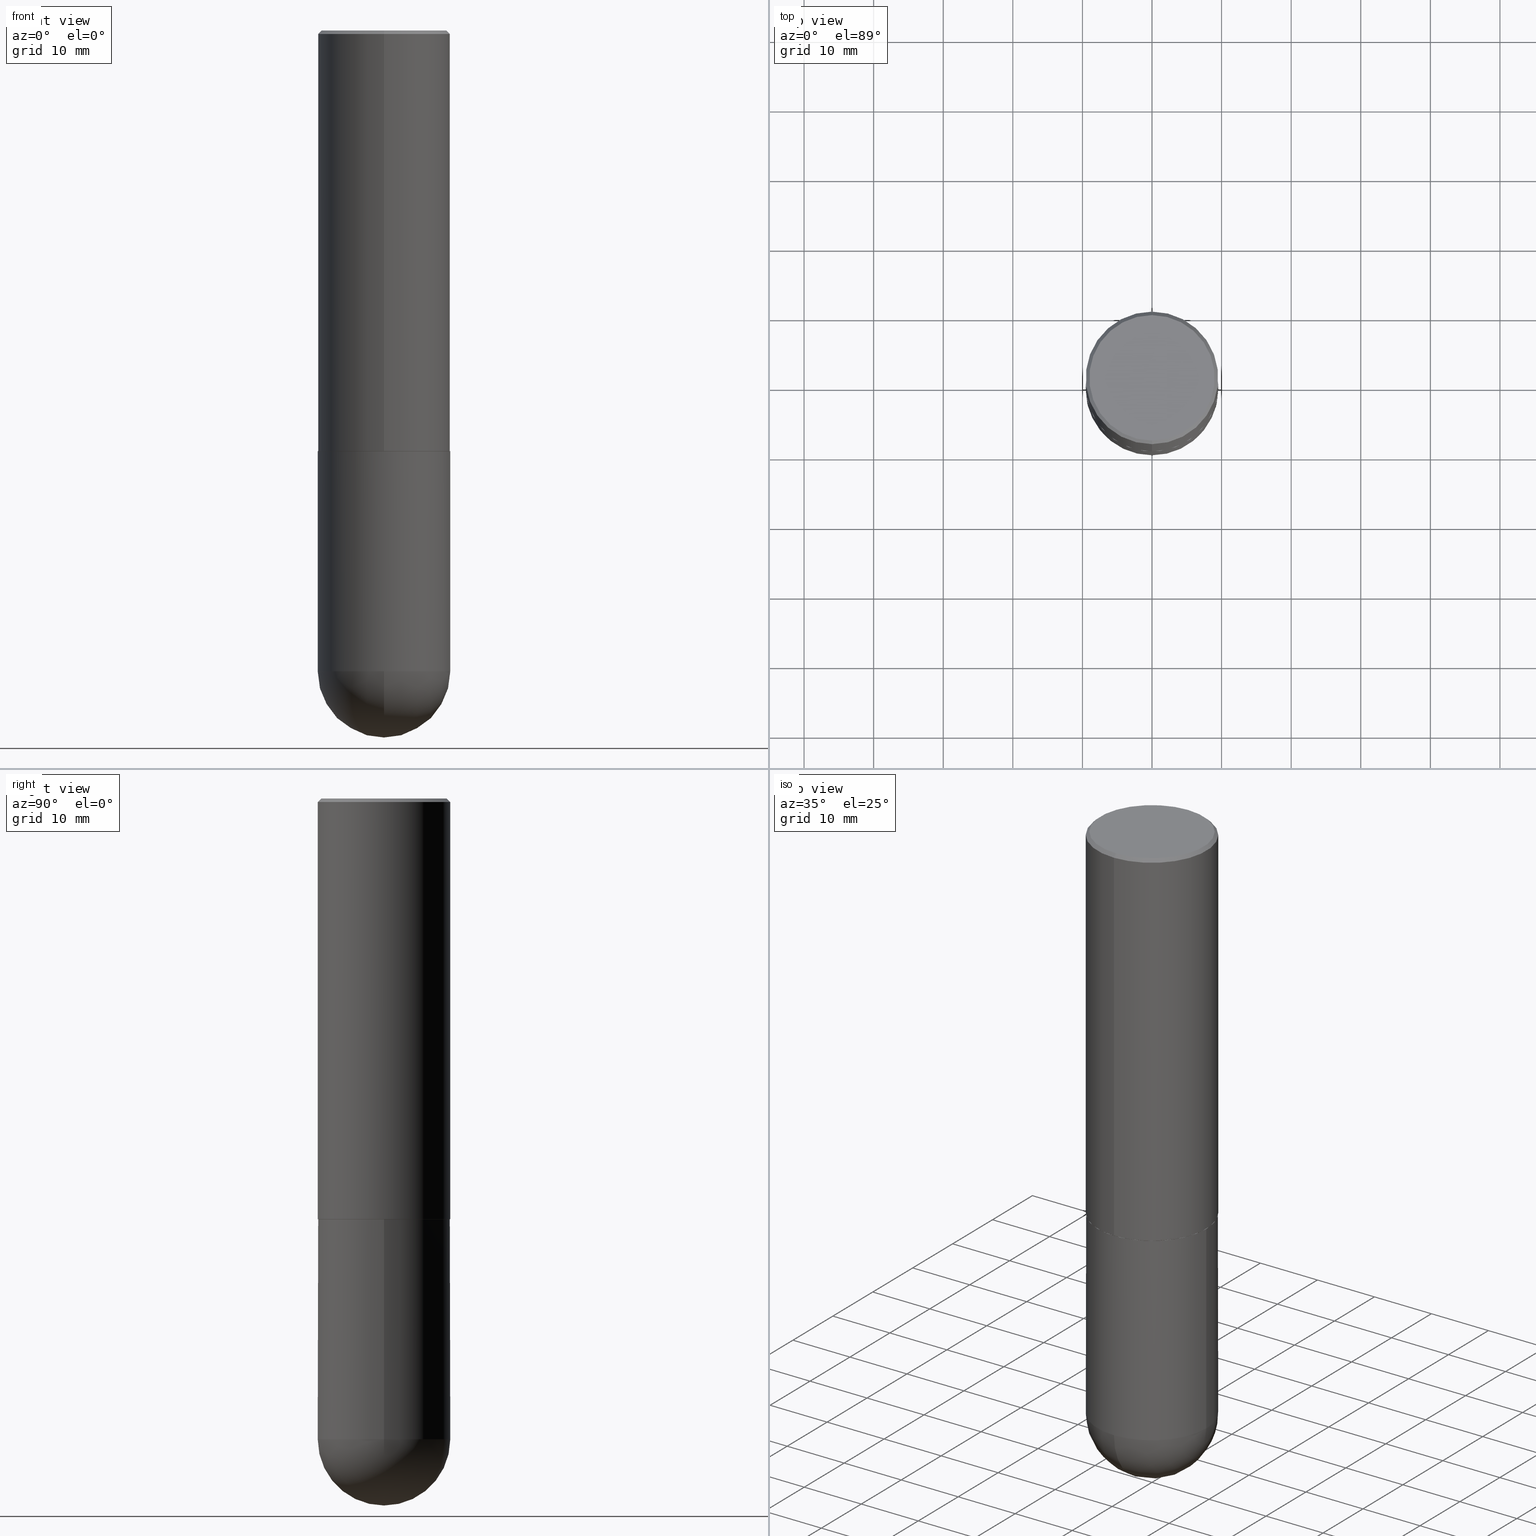
[diagram: canonical four-view strip — front | top / right | iso, engineering-drawing reading convention]
A machine part, canonical four-view strip (front | top / right | iso — engineering-drawing reading convention). The complete STEP part file that produces these views, byte-faithful:
ISO-10303-21;
HEADER;
FILE_DESCRIPTION (( 'STEP AP203' ),
    '1' );
FILE_NAME ('34676.STEP',
    '2024-02-21T18:20:04',
    ( '' ),
    ( '' ),
    'SwSTEP 2.0',
    'SolidWorks 2023',
    '' );
FILE_SCHEMA (( 'CONFIG_CONTROL_DESIGN' ));
ENDSEC;

DATA;
#1 = EDGE_CURVE ( 'NONE', #393, #296, #245, .T. ) ;
#2 = CARTESIAN_POINT ( 'NONE',  ( 5.818430166394473968E-29, -8.312282656287337145E-15, -2.379999999999999893 ) ) ;
#3 = AXIS2_PLACEMENT_3D ( 'NONE', #67, #230, #7 ) ;
#4 =( GEOMETRIC_REPRESENTATION_CONTEXT ( 3 ) GLOBAL_UNCERTAINTY_ASSIGNED_CONTEXT ( ( #401 ) ) GLOBAL_UNIT_ASSIGNED_CONTEXT ( ( #83, #87, #316 ) ) REPRESENTATION_CONTEXT ( 'NONE', 'WORKASPACE' ) );
#5 = LOCAL_TIME ( 13, 20, 4.000000000000000000, #60 ) ;
#6 = ORIENTED_EDGE ( 'NONE', *, *, #253, .T. ) ;
#7 = DIRECTION ( 'NONE',  ( 1.000000000000000000, -6.982962677686265922E-15, 0.000000000000000000 ) ) ;
#8 = ORIENTED_EDGE ( 'NONE', *, *, #261, .T. ) ;
#9 = DIRECTION ( 'NONE',  ( -2.444718557308602310E-29, 3.492555737935856374E-15, 1.000000000000000000 ) ) ;
#10 = VERTEX_POINT ( 'NONE', #46 ) ;
#11 = DIRECTION ( 'NONE',  ( -6.982962677686265922E-15, -1.000000000000000000, 3.494488891895536035E-15 ) ) ;
#12 = AXIS2_PLACEMENT_3D ( 'NONE', #325, #165, #232 ) ;
#13 = ADVANCED_FACE ( 'NONE', ( #334 ), #302, .T. ) ;
#14 = FACE_OUTER_BOUND ( 'NONE', #182, .T. ) ;
#15 = ORIENTED_EDGE ( 'NONE', *, *, #109, .F. ) ;
#16 = DIRECTION ( 'NONE',  ( -6.982962677686265922E-15, -1.000000000000000000, 3.492555737935855585E-15 ) ) ;
#17 = DIRECTION ( 'NONE',  ( 5.024295867788576727E-15, 0.7071067811866224018, 0.7071067811864726327 ) ) ;
#18 = CARTESIAN_POINT ( 'NONE',  ( -2.572686749164323547E-15, -0.3750000000000001110, -0.01999999999999877570 ) ) ;
#19 = PRODUCT_RELATED_PRODUCT_CATEGORY ( 'detail', '', ( #146 ) ) ;
#20 = CARTESIAN_POINT ( 'NONE',  ( -2.664535259100290106E-15, -0.3750000000000131006, -3.624999999999998668 ) ) ;
#21 = CARTESIAN_POINT ( 'NONE',  ( 2.618611004132408392E-15, 0.3749999999999916733, -2.380000000000001226 ) ) ;
#22 = EDGE_LOOP ( 'NONE', ( #399, #141, #248, #104 ) ) ;
#23 = DIRECTION ( 'NONE',  ( -7.105427357600999492E-15, -1.000000000000000000, 0.000000000000000000 ) ) ;
#24 = CARTESIAN_POINT ( 'NONE',  ( 9.466789814748773816E-29, -1.441714559602862136E-14, -4.000000000000000000 ) ) ;
#25 = DIRECTION ( 'NONE',  ( 6.982962677686265922E-15, 1.000000000000000000, -3.494488891895536035E-15 ) ) ;
#26 = DESIGN_CONTEXT ( 'detailed design', #65, 'design' ) ;
#27 = CIRCLE ( 'NONE', #123, 0.3750000000000000555 ) ;
#28 = DIRECTION ( 'NONE',  ( 0.000000000000000000, 0.000000000000000000, 1.000000000000000000 ) ) ;
#29 = CALENDAR_DATE ( 2024, 21, 2 ) ;
#30 = EDGE_CURVE ( 'NONE', #10, #336, #178, .T. ) ;
#31 = PERSON_AND_ORGANIZATION_ROLE ( 'design_owner' ) ;
#32 = CIRCLE ( 'NONE', #144, 0.3750000000000002776 ) ;
#33 = ADVANCED_BREP_SHAPE_REPRESENTATION ( '34676', ( #188, #320, #283 ), #4 ) ;
#34 = VERTEX_POINT ( 'NONE', #24 ) ;
#35 = CARTESIAN_POINT ( 'NONE',  ( 8.864824422421120163E-29, -1.265661985330640259E-14, -3.624999999999999556 ) ) ;
#36 = AXIS2_PLACEMENT_3D ( 'NONE', #294, #45, #71 ) ;
#37 = VECTOR ( 'NONE', #385, 39.37007874015748143 ) ;
#38 = ORIENTED_EDGE ( 'NONE', *, *, #364, .F. ) ;
#39 = DIRECTION ( 'NONE',  ( -6.982962677686266711E-15, -1.000000000000000000, 3.652203200085913145E-15 ) ) ;
#40 = DIRECTION ( 'NONE',  ( -2.444718557308602870E-29, 3.492555737935855980E-15, 1.000000000000000000 ) ) ;
#41 = CC_DESIGN_PERSON_AND_ORGANIZATION_ASSIGNMENT ( #409, #124, ( #155 ) ) ;
#42 = VERTEX_POINT ( 'NONE', #20 ) ;
#43 = SPHERICAL_SURFACE ( 'NONE', #258, 0.3750000000000003886 ) ;
#44 = AXIS2_PLACEMENT_3D ( 'NONE', #277, #400, #23 ) ;
#45 = DIRECTION ( 'NONE',  ( -2.444718557308602870E-29, 3.492555737935855980E-15, 1.000000000000000000 ) ) ;
#46 = CARTESIAN_POINT ( 'NONE',  ( 0.3750000000000001110, -1.310178372400889468E-14, -3.624999999999999556 ) ) ;
#47 = EDGE_CURVE ( 'NONE', #370, #310, #329, .T. ) ;
#48 = DIRECTION ( 'NONE',  ( -2.444718557308602870E-29, 3.492555737935855980E-15, 1.000000000000000000 ) ) ;
#49 = ORIENTED_EDGE ( 'NONE', *, *, #201, .F. ) ;
#50 = DIRECTION ( 'NONE',  ( -4.937700262165053702E-15, -0.7071067811866175168, 0.7071067811864775177 ) ) ;
#51 = CC_DESIGN_APPROVAL ( #344, ( #155 ) ) ;
#52 = DIRECTION ( 'NONE',  ( 2.438088387897960049E-29, -3.491481338843145188E-15, -1.000000000000000000 ) ) ;
#53 = DIMENSIONAL_EXPONENTS ( 1.000000000000000000, 0.000000000000000000, 0.000000000000000000, 0.000000000000000000, 0.000000000000000000, 0.000000000000000000, 0.000000000000000000 ) ;
#54 = CARTESIAN_POINT ( 'NONE',  ( 8.533704644507233916E-29, -1.313080222144645289E-14, -3.624999999999999556 ) ) ;
#55 = EDGE_LOOP ( 'NONE', ( #66, #72, #227, #402 ) ) ;
#56 = DIRECTION ( 'NONE',  ( -2.444718557308602870E-29, 3.492555737935855980E-15, 1.000000000000000000 ) ) ;
#57 = CARTESIAN_POINT ( 'NONE',  ( 0.000000000000000000, 0.000000000000000000, 0.000000000000000000 ) ) ;
#58 = LOCAL_TIME ( 13, 20, 4.000000000000000000, #256 ) ;
#59 = EDGE_CURVE ( 'NONE', #393, #113, #63, .T. ) ;
#60 = COORDINATED_UNIVERSAL_TIME_OFFSET ( 5, 0, .BEHIND. ) ;
#61 = PERSON_AND_ORGANIZATION ( #315, #116 ) ;
#62 = PERSON_AND_ORGANIZATION_ROLE ( 'classification_officer' ) ;
#63 = CIRCLE ( 'NONE', #295, 0.3739999999999999991 ) ;
#64 = CARTESIAN_POINT ( 'NONE',  ( 2.618611004132438763E-15, 0.3749999999999873990, -3.625000000000000888 ) ) ;
#65 = APPLICATION_CONTEXT ( 'configuration controlled 3d designs of mechanical parts and assemblies' ) ;
#66 = ORIENTED_EDGE ( 'NONE', *, *, #261, .F. ) ;
#67 = CARTESIAN_POINT ( 'NONE',  ( 8.864824422421120163E-29, -1.265661985330640259E-14, -3.624999999999999556 ) ) ;
#68 = AXIS2_PLACEMENT_3D ( 'NONE', #152, #362, #303 ) ;
#69 = PLANE ( 'NONE',  #239 ) ;
#70 = ORIENTED_EDGE ( 'NONE', *, *, #307, .F. ) ;
#71 = DIRECTION ( 'NONE',  ( -6.982962677686266711E-15, -1.000000000000000000, 3.652203200085913145E-15 ) ) ;
#72 = ORIENTED_EDGE ( 'NONE', *, *, #226, .T. ) ;
#73 = DIRECTION ( 'NONE',  ( 2.444718557308602870E-29, -3.492555737935855980E-15, -1.000000000000000000 ) ) ;
#74 = AXIS2_PLACEMENT_3D ( 'NONE', #35, #289, #198 ) ;
#75 = EDGE_CURVE ( 'NONE', #107, #42, #403, .T. ) ;
#76 = CC_DESIGN_APPROVAL ( #269, ( #376 ) ) ;
#77 = ORIENTED_EDGE ( 'NONE', *, *, #30, .T. ) ;
#78 = LINE ( 'NONE', #309, #265 ) ;
#79 = FACE_OUTER_BOUND ( 'NONE', #340, .T. ) ;
#80 = CLOSED_SHELL ( 'NONE', ( #100, #13, #193, #408, #217 ) ) ;
#81 = VECTOR ( 'NONE', #279, 39.37007874015748143 ) ;
#82 = VERTEX_POINT ( 'NONE', #342 ) ;
#83 =( CONVERSION_BASED_UNIT ( 'INCH', #211 ) LENGTH_UNIT ( ) NAMED_UNIT ( #53 ) );
#84 = DIRECTION ( 'NONE',  ( -2.445468806185136597E-29, 3.491481338843145583E-15, 1.000000000000000000 ) ) ;
#85 = CARTESIAN_POINT ( 'NONE',  ( 5.820215758720624069E-29, -8.309725586446685153E-15, -2.379999999999999893 ) ) ;
#86 = CARTESIAN_POINT ( 'NONE',  ( 0.000000000000000000, 0.000000000000000000, 0.000000000000000000 ) ) ;
#87 =( NAMED_UNIT ( * ) PLANE_ANGLE_UNIT ( ) SI_UNIT ( $, .RADIAN. ) );
#88 = CC_DESIGN_DATE_AND_TIME_ASSIGNMENT ( #351, #221, ( #186 ) ) ;
#89 = VECTOR ( 'NONE', #137, 39.37007874015748143 ) ;
#90 = CALENDAR_DATE ( 2024, 21, 2 ) ;
#91 = AXIS2_PLACEMENT_3D ( 'NONE', #297, #260, #196 ) ;
#92 = DATE_TIME_ROLE ( 'creation_date' ) ;
#93 = APPLICATION_PROTOCOL_DEFINITION ( 'international standard', 'config_control_design', 1994, #168 ) ;
#94 = SECURITY_CLASSIFICATION_LEVEL ( 'unclassified' ) ;
#95 = CC_DESIGN_PERSON_AND_ORGANIZATION_ASSIGNMENT ( #281, #31, ( #146 ) ) ;
#96 = LOCAL_TIME ( 13, 20, 4.000000000000000000, #374 ) ;
#97 = EDGE_LOOP ( 'NONE', ( #117, #112, #270, #15 ) ) ;
#98 = DIRECTION ( 'NONE',  ( 6.982962677686265922E-15, 1.000000000000000000, -3.494488891895536035E-15 ) ) ;
#99 = DIRECTION ( 'NONE',  ( 1.000000000000000000, -6.982962677686266711E-15, 0.000000000000000000 ) ) ;
#100 = ADVANCED_FACE ( 'NONE', ( #79 ), #210, .T. ) ;
#101 = ORIENTED_EDGE ( 'NONE', *, *, #364, .T. ) ;
#102 = LINE ( 'NONE', #262, #37 ) ;
#103 = AXIS2_PLACEMENT_3D ( 'NONE', #206, #48, #343 ) ;
#104 = ORIENTED_EDGE ( 'NONE', *, *, #339, .F. ) ;
#105 = CARTESIAN_POINT ( 'NONE',  ( 8.533704644507233916E-29, -1.313080222144645289E-14, -3.624999999999999556 ) ) ;
#106 = ORIENTED_EDGE ( 'NONE', *, *, #148, .T. ) ;
#107 = VERTEX_POINT ( 'NONE', #119 ) ;
#108 = CARTESIAN_POINT ( 'NONE',  ( -2.618611004132351200E-15, -0.3750000000000001665, 1.309708401725946436E-15 ) ) ;
#109 = EDGE_CURVE ( 'NONE', #296, #264, #203, .T. ) ;
#110 = CONICAL_SURFACE ( 'NONE', #36, 0.3739999999999999991, 0.7853981633975507526 ) ;
#111 = DIRECTION ( 'NONE',  ( -2.444718557308602870E-29, 3.492555737935855980E-15, 1.000000000000000000 ) ) ;
#112 = ORIENTED_EDGE ( 'NONE', *, *, #59, .T. ) ;
#113 = VERTEX_POINT ( 'NONE', #345 ) ;
#114 = EDGE_CURVE ( 'NONE', #10, #167, #257, .T. ) ;
#115 = DIRECTION ( 'NONE',  ( -6.982962677686266711E-15, -1.000000000000000000, 3.642463991552348591E-15 ) ) ;
#116 = ORGANIZATION ( 'UNSPECIFIED', 'UNSPECIFIED', '' ) ;
#117 = ORIENTED_EDGE ( 'NONE', *, *, #1, .F. ) ;
#118 = CARTESIAN_POINT ( 'NONE',  ( 0.3750000000000000555, -1.092833659057903675E-14, -2.379999999999999893 ) ) ;
#119 = CARTESIAN_POINT ( 'NONE',  ( -0.3750000000000001110, -7.818637460776168963E-15, -3.624999999999999556 ) ) ;
#120 = DATE_AND_TIME ( #254, #58 ) ;
#121 = EDGE_CURVE ( 'NONE', #167, #107, #183, .T. ) ;
#122 = PERSON_AND_ORGANIZATION ( #315, #116 ) ;
#123 = AXIS2_PLACEMENT_3D ( 'NONE', #163, #130, #11 ) ;
#124 = PERSON_AND_ORGANIZATION_ROLE ( 'creator' ) ;
#125 = DATE_AND_TIME ( #412, #5 ) ;
#126 = PERSON_AND_ORGANIZATION ( #315, #116 ) ;
#127 = AXIS2_PLACEMENT_3D ( 'NONE', #21, #52, #299 ) ;
#128 = CARTESIAN_POINT ( 'NONE',  ( 5.820215758720624069E-29, -8.309725586446685153E-15, -2.379999999999999893 ) ) ;
#129 = ORIENTED_EDGE ( 'NONE', *, *, #121, .T. ) ;
#130 = DIRECTION ( 'NONE',  ( -2.444718557308602870E-29, 3.492555737935855980E-15, 1.000000000000000000 ) ) ;
#131 = ADVANCED_FACE ( 'NONE', ( #266 ), #110, .T. ) ;
#132 = PLANE ( 'NONE',  #350 ) ;
#133 = ORIENTED_EDGE ( 'NONE', *, *, #349, .F. ) ;
#134 = FACE_OUTER_BOUND ( 'NONE', #97, .T. ) ;
#135 = VECTOR ( 'NONE', #17, 39.37007874015748143 ) ;
#136 = EDGE_LOOP ( 'NONE', ( #298, #276, #326, #384 ) ) ;
#137 = DIRECTION ( 'NONE',  ( 4.937700262164541731E-15, 0.7071067811865442421, -0.7071067811865507924 ) ) ;
#138 = ORIENTED_EDGE ( 'NONE', *, *, #47, .T. ) ;
#139 = ADVANCED_FACE ( 'NONE', ( #388 ), #69, .F. ) ;
#140 = CARTESIAN_POINT ( 'NONE',  ( 2.664535259100406068E-15, 0.3749999999999919509, -2.379000000000000892 ) ) ;
#141 = ORIENTED_EDGE ( 'NONE', *, *, #222, .T. ) ;
#142 = CARTESIAN_POINT ( 'NONE',  ( 4.889437114617226549E-31, -6.985111475871741345E-17, -0.02000000000000008715 ) ) ;
#143 = AXIS2_PLACEMENT_3D ( 'NONE', #54, #205, #180 ) ;
#144 = AXIS2_PLACEMENT_3D ( 'NONE', #301, #56, #115 ) ;
#145 = CARTESIAN_POINT ( 'NONE',  ( 4.889437114617226549E-31, -6.985111475871741345E-17, -0.02000000000000008715 ) ) ;
#146 = PRODUCT ( '34676', '34676', '', ( #379 ) ) ;
#147 = CARTESIAN_POINT ( 'NONE',  ( -7.209689512759563820E-45, 1.029985329037031247E-30, 2.949087734948405910E-16 ) ) ;
#148 = EDGE_CURVE ( 'NONE', #82, #370, #228, .T. ) ;
#149 = ORIENTED_EDGE ( 'NONE', *, *, #30, .F. ) ;
#150 = CARTESIAN_POINT ( 'NONE',  ( 8.533704644507233916E-29, -1.313080222144645289E-14, -3.624999999999999556 ) ) ;
#151 = DIRECTION ( 'NONE',  ( -6.982962677686265922E-15, -1.000000000000000000, 3.494488891895536035E-15 ) ) ;
#152 = CARTESIAN_POINT ( 'NONE',  ( 8.864824422421120163E-29, -1.265661985330640259E-14, -3.624999999999999556 ) ) ;
#153 = AXIS2_PLACEMENT_3D ( 'NONE', #150, #333, #174 ) ;
#154 = DIRECTION ( 'NONE',  ( -2.445468806185136597E-29, 3.491481338843145583E-15, 1.000000000000000000 ) ) ;
#155 = PRODUCT_DEFINITION ( 'UNKNOWN', '', #376, #26 ) ;
#156 = APPROVAL_STATUS ( 'not_yet_approved' ) ;
#157 = PERSON_AND_ORGANIZATION ( #315, #116 ) ;
#158 = PERSON_AND_ORGANIZATION_ROLE ( 'creator' ) ;
#159 = ADVANCED_FACE ( 'NONE', ( #134 ), #312, .T. ) ;
#160 = ORIENTED_EDGE ( 'NONE', *, *, #162, .F. ) ;
#161 = CLOSED_SHELL ( 'NONE', ( #131, #331, #185, #383, #208, #159, #139, #171 ) ) ;
#162 = EDGE_CURVE ( 'NONE', #195, #336, #405, .T. ) ;
#163 = CARTESIAN_POINT ( 'NONE',  ( 4.889437114617226549E-31, -6.985111475871741345E-17, -0.02000000000000008715 ) ) ;
#164 = ORIENTED_EDGE ( 'NONE', *, *, #162, .T. ) ;
#165 = DIRECTION ( 'NONE',  ( -2.445468806185136597E-29, 3.491481338843145583E-15, 1.000000000000000000 ) ) ;
#166 = FACE_OUTER_BOUND ( 'NONE', #300, .T. ) ;
#167 = VERTEX_POINT ( 'NONE', #64 ) ;
#168 = APPLICATION_CONTEXT ( 'configuration controlled 3d designs of mechanical parts and assemblies' ) ;
#169 = DIRECTION ( 'NONE',  ( -1.000000000000000000, 6.982962677686266711E-15, -4.883557194083113462E-29 ) ) ;
#170 = VECTOR ( 'NONE', #306, 39.37007874015748143 ) ;
#171 = ADVANCED_FACE ( 'NONE', ( #166 ), #132, .F. ) ;
#172 = CYLINDRICAL_SURFACE ( 'NONE', #91, 0.3750000000000001665 ) ;
#173 = ORIENTED_EDGE ( 'NONE', *, *, #148, .F. ) ;
#174 = DIRECTION ( 'NONE',  ( 6.982962677686265922E-15, 1.000000000000000000, 0.000000000000000000 ) ) ;
#175 = ORIENTED_EDGE ( 'NONE', *, *, #75, .F. ) ;
#176 = DIRECTION ( 'NONE',  ( 2.444718557308602870E-29, -3.492555737935855980E-15, -1.000000000000000000 ) ) ;
#177 = AXIS2_PLACEMENT_3D ( 'NONE', #181, #242, #404 ) ;
#178 = LINE ( 'NONE', #367, #368 ) ;
#179 = CARTESIAN_POINT ( 'NONE',  ( 2.664535259100376486E-15, 0.3750000000000001665, -1.309708401725946436E-15 ) ) ;
#180 = DIRECTION ( 'NONE',  ( 6.982962677686266711E-15, 1.000000000000000000, -2.913971193241878005E-15 ) ) ;
#181 = CARTESIAN_POINT ( 'NONE',  ( -7.209689512759563820E-45, 1.029985329037031247E-30, 2.949087734948405910E-16 ) ) ;
#182 = EDGE_LOOP ( 'NONE', ( #49, #328, #229, #77, #160 ) ) ;
#183 = CIRCLE ( 'NONE', #3, 0.3750000000000001110 ) ;
#184 = AXIS2_PLACEMENT_3D ( 'NONE', #337, #268, #369 ) ;
#185 = ADVANCED_FACE ( 'NONE', ( #322 ), #287, .T. ) ;
#186 = SECURITY_CLASSIFICATION ( '', '', #94 ) ;
#187 = COORDINATED_UNIVERSAL_TIME_OFFSET ( 5, 0, .BEHIND. ) ;
#188 = MANIFOLD_SOLID_BREP ( 'Body-Move/Copy2[1]', #80 ) ;
#189 = DIRECTION ( 'NONE',  ( 1.000000000000000000, 0.000000000000000000, 0.000000000000000000 ) ) ;
#190 = PERSON_AND_ORGANIZATION_ROLE ( 'design_supplier' ) ;
#191 = EDGE_CURVE ( 'NONE', #310, #370, #27, .T. ) ;
#192 = AXIS2_PLACEMENT_3D ( 'NONE', #357, #40, #39 ) ;
#193 = ADVANCED_FACE ( 'NONE', ( #200 ), #43, .T. ) ;
#194 = DIRECTION ( 'NONE',  ( 6.982962677686265922E-15, 1.000000000000000000, -3.492555737935856374E-15 ) ) ;
#195 = VERTEX_POINT ( 'NONE', #386 ) ;
#196 = DIRECTION ( 'NONE',  ( -6.982962677686266711E-15, -1.000000000000000000, 3.492555737935855585E-15 ) ) ;
#197 = EDGE_LOOP ( 'NONE', ( #381, #391 ) ) ;
#198 = DIRECTION ( 'NONE',  ( 1.000000000000000000, -6.982962677686265922E-15, 0.000000000000000000 ) ) ;
#199 = ORIENTED_EDGE ( 'NONE', *, *, #286, .F. ) ;
#200 = FACE_OUTER_BOUND ( 'NONE', #55, .T. ) ;
#201 = EDGE_CURVE ( 'NONE', #107, #195, #102, .T. ) ;
#202 = CYLINDRICAL_SURFACE ( 'NONE', #12, 0.3750000000000001110 ) ;
#203 = CIRCLE ( 'NONE', #220, 0.3750000000000002776 ) ;
#204 = AXIS2_PLACEMENT_3D ( 'NONE', #85, #396, #392 ) ;
#205 = DIRECTION ( 'NONE',  ( -1.000000000000000000, 6.982962677686266711E-15, -4.883557194083113462E-29 ) ) ;
#206 = CARTESIAN_POINT ( 'NONE',  ( 5.818430166394473968E-29, -8.312282656287337145E-15, -2.379999999999999893 ) ) ;
#207 = ORIENTED_EDGE ( 'NONE', *, *, #307, .T. ) ;
#208 = ADVANCED_FACE ( 'NONE', ( #390 ), #172, .T. ) ;
#209 = CARTESIAN_POINT ( 'NONE',  ( -2.618611004132293613E-15, -0.3750000000000086597, -2.378999999999998227 ) ) ;
#210 = CYLINDRICAL_SURFACE ( 'NONE', #360, 0.3750000000000001110 ) ;
#211 = LENGTH_MEASURE_WITH_UNIT ( LENGTH_MEASURE( 0.02539999999999999897 ), #275 );
#212 = CIRCLE ( 'NONE', #103, 0.3739999999999999991 ) ;
#213 = ORIENTED_EDGE ( 'NONE', *, *, #253, .F. ) ;
#214 = CARTESIAN_POINT ( 'NONE',  ( 2.660982545421633963E-15, 0.3739999999999916724, -2.380000000000001226 ) ) ;
#215 = EDGE_LOOP ( 'NONE', ( #324, #8, #175, #237 ) ) ;
#216 = LINE ( 'NONE', #398, #170 ) ;
#217 = ADVANCED_FACE ( 'NONE', ( #14 ), #202, .T. ) ;
#218 = DIRECTION ( 'NONE',  ( -6.982962677686266711E-15, -1.000000000000000000, 3.642463991552348591E-15 ) ) ;
#219 = APPROVAL_STATUS ( 'not_yet_approved' ) ;
#220 = AXIS2_PLACEMENT_3D ( 'NONE', #250, #372, #218 ) ;
#221 = DATE_TIME_ROLE ( 'classification_date' ) ;
#222 = EDGE_CURVE ( 'NONE', #296, #370, #356, .T. ) ;
#223 = APPROVAL_ROLE ( '' ) ;
#224 = AXIS2_PLACEMENT_3D ( 'NONE', #278, #84, #363 ) ;
#225 = CALENDAR_DATE ( 2024, 21, 2 ) ;
#226 = EDGE_CURVE ( 'NONE', #34, #167, #353, .T. ) ;
#227 = ORIENTED_EDGE ( 'NONE', *, *, #114, .F. ) ;
#228 = LINE ( 'NONE', #291, #89 ) ;
#229 = ORIENTED_EDGE ( 'NONE', *, *, #292, .T. ) ;
#230 = DIRECTION ( 'NONE',  ( -2.445468806185136597E-29, 3.491481338843145583E-15, 1.000000000000000000 ) ) ;
#231 = AXIS2_PLACEMENT_3D ( 'NONE', #128, #359, #99 ) ;
#232 = DIRECTION ( 'NONE',  ( 1.000000000000000000, -6.982962677686265922E-15, 4.876176775795935793E-29 ) ) ;
#233 = ORIENTED_EDGE ( 'NONE', *, *, #1, .T. ) ;
#234 = APPROVAL ( #347, 'UNSPECIFIED' ) ;
#235 = DIRECTION ( 'NONE',  ( 6.982962677686266711E-15, 1.000000000000000000, -2.913971193241878005E-15 ) ) ;
#236 = ORIENTED_EDGE ( 'NONE', *, *, #411, .F. ) ;
#237 = ORIENTED_EDGE ( 'NONE', *, *, #121, .F. ) ;
#238 = CARTESIAN_POINT ( 'NONE',  ( 2.618611004132350411E-15, 0.3749999999999999445, -0.02000000000000139513 ) ) ;
#239 = AXIS2_PLACEMENT_3D ( 'NONE', #2, #9, #327 ) ;
#240 = LOCAL_TIME ( 13, 20, 4.000000000000000000, #282 ) ;
#241 = CC_DESIGN_PERSON_AND_ORGANIZATION_ASSIGNMENT ( #61, #158, ( #376 ) ) ;
#242 = DIRECTION ( 'NONE',  ( -2.444718557308602870E-29, 3.492555737935855980E-15, 1.000000000000000000 ) ) ;
#243 = DIRECTION ( 'NONE',  ( -6.982962677686266711E-15, -1.000000000000000000, 3.652203200085913145E-15 ) ) ;
#244 = CYLINDRICAL_SURFACE ( 'NONE', #184, 0.3750000000000001665 ) ;
#245 = LINE ( 'NONE', #361, #135 ) ;
#246 = FACE_OUTER_BOUND ( 'NONE', #22, .T. ) ;
#247 = AXIS2_PLACEMENT_3D ( 'NONE', #145, #274, #151 ) ;
#248 = ORIENTED_EDGE ( 'NONE', *, *, #191, .F. ) ;
#249 = CARTESIAN_POINT ( 'NONE',  ( -2.504081769186607427E-15, -0.3549999999999997047, 1.534766060462068184E-15 ) ) ;
#250 = CARTESIAN_POINT ( 'NONE',  ( 5.815985447837164627E-29, -8.308790100549400449E-15, -2.378999999999999559 ) ) ;
#251 = PERSON_AND_ORGANIZATION ( #315, #116 ) ;
#252 = CIRCLE ( 'NONE', #44, 0.3750000000000003886 ) ;
#253 = EDGE_CURVE ( 'NONE', #321, #310, #216, .T. ) ;
#254 = CALENDAR_DATE ( 2024, 21, 2 ) ;
#255 = APPROVAL_DATE_TIME ( #125, #234 ) ;
#256 = COORDINATED_UNIVERSAL_TIME_OFFSET ( 5, 0, .BEHIND. ) ;
#257 = CIRCLE ( 'NONE', #74, 0.3750000000000001110 ) ;
#258 = AXIS2_PLACEMENT_3D ( 'NONE', #105, #169, #235 ) ;
#259 = ORIENTED_EDGE ( 'NONE', *, *, #389, .T. ) ;
#260 = DIRECTION ( 'NONE',  ( -2.444718557308602870E-29, 3.492555737935855980E-15, 1.000000000000000000 ) ) ;
#261 = EDGE_CURVE ( 'NONE', #34, #42, #252, .T. ) ;
#262 = CARTESIAN_POINT ( 'NONE',  ( -0.3750000000000001110, 2.664535259100376486E-15, -1.844600658845590159E-29 ) ) ;
#263 = DIRECTION ( 'NONE',  ( 2.444718557308602310E-29, -3.492555737935856374E-15, -1.000000000000000000 ) ) ;
#264 = VERTEX_POINT ( 'NONE', #209 ) ;
#265 = VECTOR ( 'NONE', #50, 39.37007874015748143 ) ;
#266 = FACE_OUTER_BOUND ( 'NONE', #358, .T. ) ;
#267 = EDGE_LOOP ( 'NONE', ( #213, #70, #106, #138 ) ) ;
#268 = DIRECTION ( 'NONE',  ( -2.444718557308602870E-29, 3.492555737935855980E-15, 1.000000000000000000 ) ) ;
#269 = APPROVAL ( #219, 'UNSPECIFIED' ) ;
#270 = ORIENTED_EDGE ( 'NONE', *, *, #349, .T. ) ;
#271 = PLANE ( 'NONE',  #127 ) ;
#272 = CIRCLE ( 'NONE', #177, 0.3549999999999997047 ) ;
#273 = APPROVAL_PERSON_ORGANIZATION ( #157, #234, #284 ) ;
#274 = DIRECTION ( 'NONE',  ( -2.444718557308602870E-29, 3.492555737935855980E-15, 1.000000000000000000 ) ) ;
#275 =( LENGTH_UNIT ( ) NAMED_UNIT ( * ) SI_UNIT ( $, .METRE. ) );
#276 = ORIENTED_EDGE ( 'NONE', *, *, #109, .T. ) ;
#277 = CARTESIAN_POINT ( 'NONE',  ( 8.533704644507233916E-29, -1.313080222144645289E-14, -3.624999999999999556 ) ) ;
#278 = CARTESIAN_POINT ( 'NONE',  ( 8.864824422421120163E-29, -1.265661985330640259E-14, -3.624999999999999556 ) ) ;
#279 = DIRECTION ( 'NONE',  ( -2.444718557308602870E-29, 3.492555737935856374E-15, 1.000000000000000000 ) ) ;
#280 = CIRCLE ( 'NONE', #68, 0.3750000000000001110 ) ;
#281 = PERSON_AND_ORGANIZATION ( #315, #116 ) ;
#282 = COORDINATED_UNIVERSAL_TIME_OFFSET ( 5, 0, .BEHIND. ) ;
#283 = AXIS2_PLACEMENT_3D ( 'NONE', #57, #28, #189 ) ;
#284 = APPROVAL_ROLE ( '' ) ;
#285 = DATE_AND_TIME ( #90, #240 ) ;
#286 = EDGE_CURVE ( 'NONE', #264, #296, #32, .T. ) ;
#287 = CONICAL_SURFACE ( 'NONE', #387, 0.3750000000000000555, 0.7853981633974471688 ) ;
#288 = ORIENTED_EDGE ( 'NONE', *, *, #114, .T. ) ;
#289 = DIRECTION ( 'NONE',  ( -2.445468806185136597E-29, 3.491481338843145583E-15, 1.000000000000000000 ) ) ;
#290 = EDGE_LOOP ( 'NONE', ( #236, #6, #293, #173 ) ) ;
#291 = CARTESIAN_POINT ( 'NONE',  ( 2.618611004132350411E-15, 0.3749999999999999445, -0.02000000000000139513 ) ) ;
#292 = EDGE_CURVE ( 'NONE', #42, #10, #280, .T. ) ;
#293 = ORIENTED_EDGE ( 'NONE', *, *, #191, .T. ) ;
#294 = CARTESIAN_POINT ( 'NONE',  ( 5.818430166394473968E-29, -8.312282656287337145E-15, -2.379999999999999893 ) ) ;
#295 = AXIS2_PLACEMENT_3D ( 'NONE', #305, #397, #243 ) ;
#296 = VERTEX_POINT ( 'NONE', #140 ) ;
#297 = CARTESIAN_POINT ( 'NONE',  ( 0.000000000000000000, 0.000000000000000000, 0.000000000000000000 ) ) ;
#298 = ORIENTED_EDGE ( 'NONE', *, *, #222, .F. ) ;
#299 = DIRECTION ( 'NONE',  ( -1.000000000000000000, 6.982962677686265922E-15, -4.876176775795935793E-29 ) ) ;
#300 = EDGE_LOOP ( 'NONE', ( #207, #330 ) ) ;
#301 = CARTESIAN_POINT ( 'NONE',  ( 5.815985447837164627E-29, -8.308790100549400449E-15, -2.378999999999999559 ) ) ;
#302 = SPHERICAL_SURFACE ( 'NONE', #143, 0.3750000000000003886 ) ;
#303 = DIRECTION ( 'NONE',  ( 1.000000000000000000, -6.982962677686265922E-15, 0.000000000000000000 ) ) ;
#304 = CIRCLE ( 'NONE', #204, 0.3750000000000000555 ) ;
#305 = CARTESIAN_POINT ( 'NONE',  ( 5.818430166394473968E-29, -8.312282656287337145E-15, -2.379999999999999893 ) ) ;
#306 = DIRECTION ( 'NONE',  ( -4.851104656540957964E-15, -0.7071067811865491270, -0.7071067811865459074 ) ) ;
#307 = EDGE_CURVE ( 'NONE', #82, #321, #272, .T. ) ;
#308 = DIRECTION ( 'NONE',  ( -2.445468806185136877E-29, 3.491481338843145188E-15, 1.000000000000000000 ) ) ;
#309 = CARTESIAN_POINT ( 'NONE',  ( -2.611628041454605626E-15, -0.3740000000000083813, -2.379999999999998561 ) ) ;
#310 = VERTEX_POINT ( 'NONE', #18 ) ;
#311 = APPLICATION_PROTOCOL_DEFINITION ( 'international standard', 'config_control_design', 1994, #65 ) ;
#312 = CONICAL_SURFACE ( 'NONE', #192, 0.3739999999999999991, 0.7853981633975507526 ) ;
#313 = CC_DESIGN_DATE_AND_TIME_ASSIGNMENT ( #120, #92, ( #155 ) ) ;
#314 = DATE_AND_TIME ( #29, #338 ) ;
#315 = PERSON ( 'UNSPECIFIED', 'UNSPECIFIED', 'UNSPECIFIED', ('UNSPECIFIED'), ('UNSPECIFIED'), ('UNSPECIFIED') ) ;
#316 =( NAMED_UNIT ( * ) SI_UNIT ( $, .STERADIAN. ) SOLID_ANGLE_UNIT ( ) );
#317 = PERSON_AND_ORGANIZATION ( #315, #116 ) ;
#318 = CONICAL_SURFACE ( 'NONE', #323, 0.3750000000000000555, 0.7853981633974471688 ) ;
#319 = CC_DESIGN_PERSON_AND_ORGANIZATION_ASSIGNMENT ( #317, #62, ( #186 ) ) ;
#320 = MANIFOLD_SOLID_BREP ( 'Body-Move/Copy2[2]', #161 ) ;
#321 = VERTEX_POINT ( 'NONE', #249 ) ;
#322 = FACE_OUTER_BOUND ( 'NONE', #290, .T. ) ;
#323 = AXIS2_PLACEMENT_3D ( 'NONE', #142, #176, #25 ) ;
#324 = ORIENTED_EDGE ( 'NONE', *, *, #226, .F. ) ;
#325 = CARTESIAN_POINT ( 'NONE',  ( 0.000000000000000000, 0.000000000000000000, 0.000000000000000000 ) ) ;
#326 = ORIENTED_EDGE ( 'NONE', *, *, #339, .T. ) ;
#327 = DIRECTION ( 'NONE',  ( -6.982962677686265922E-15, -1.000000000000000000, 3.492555737935856374E-15 ) ) ;
#328 = ORIENTED_EDGE ( 'NONE', *, *, #75, .T. ) ;
#329 = CIRCLE ( 'NONE', #247, 0.3750000000000000555 ) ;
#330 = ORIENTED_EDGE ( 'NONE', *, *, #411, .T. ) ;
#331 = ADVANCED_FACE ( 'NONE', ( #246 ), #244, .T. ) ;
#332 = ORIENTED_EDGE ( 'NONE', *, *, #201, .T. ) ;
#333 = DIRECTION ( 'NONE',  ( 1.000000000000000000, -6.982962677686265922E-15, 4.883557194083112340E-29 ) ) ;
#334 = FACE_OUTER_BOUND ( 'NONE', #215, .T. ) ;
#335 = DIRECTION ( 'NONE',  ( -2.444718557308602870E-29, 3.492555737935856374E-15, 1.000000000000000000 ) ) ;
#336 = VERTEX_POINT ( 'NONE', #118 ) ;
#337 = CARTESIAN_POINT ( 'NONE',  ( 0.000000000000000000, 0.000000000000000000, 0.000000000000000000 ) ) ;
#338 = LOCAL_TIME ( 13, 20, 4.000000000000000000, #187 ) ;
#339 = EDGE_CURVE ( 'NONE', #264, #310, #371, .T. ) ;
#340 = EDGE_LOOP ( 'NONE', ( #129, #332, #38, #149, #288 ) ) ;
#341 = FACE_OUTER_BOUND ( 'NONE', #355, .T. ) ;
#342 = CARTESIAN_POINT ( 'NONE',  ( 2.548781377355486324E-15, 0.3549999999999997047, -9.449485134723871991E-16 ) ) ;
#343 = DIRECTION ( 'NONE',  ( -6.982962677686266711E-15, -1.000000000000000000, 3.652203200085913145E-15 ) ) ;
#344 = APPROVAL ( #156, 'UNSPECIFIED' ) ;
#345 = CARTESIAN_POINT ( 'NONE',  ( -2.611628041454605626E-15, -0.3740000000000083813, -2.379999999999998561 ) ) ;
#346 = APPROVAL_PERSON_ORGANIZATION ( #126, #344, #373 ) ;
#347 = APPROVAL_STATUS ( 'not_yet_approved' ) ;
#348 = APPROVAL_DATE_TIME ( #314, #269 ) ;
#349 = EDGE_CURVE ( 'NONE', #113, #264, #78, .T. ) ;
#350 = AXIS2_PLACEMENT_3D ( 'NONE', #382, #263, #194 ) ;
#351 = DATE_AND_TIME ( #225, #96 ) ;
#352 = CARTESIAN_POINT ( 'NONE',  ( 4.889437114617226549E-31, -6.985111475871741345E-17, -0.02000000000000008715 ) ) ;
#353 = CIRCLE ( 'NONE', #153, 0.3750000000000003886 ) ;
#354 = CC_DESIGN_APPROVAL ( #234, ( #186 ) ) ;
#355 = EDGE_LOOP ( 'NONE', ( #101, #164 ) ) ;
#356 = LINE ( 'NONE', #179, #81 ) ;
#357 = CARTESIAN_POINT ( 'NONE',  ( 5.818430166394473968E-29, -8.312282656287337145E-15, -2.379999999999999893 ) ) ;
#358 = EDGE_LOOP ( 'NONE', ( #259, #233, #199, #133 ) ) ;
#359 = DIRECTION ( 'NONE',  ( -2.445468806185136597E-29, 3.491481338843145583E-15, 1.000000000000000000 ) ) ;
#360 = AXIS2_PLACEMENT_3D ( 'NONE', #86, #154, #406 ) ;
#361 = CARTESIAN_POINT ( 'NONE',  ( 2.657429831742832670E-15, 0.3739999999999916724, -2.380000000000001226 ) ) ;
#362 = DIRECTION ( 'NONE',  ( -2.445468806185136597E-29, 3.491481338843145583E-15, 1.000000000000000000 ) ) ;
#363 = DIRECTION ( 'NONE',  ( 1.000000000000000000, -6.982962677686265922E-15, 0.000000000000000000 ) ) ;
#364 = EDGE_CURVE ( 'NONE', #336, #195, #304, .T. ) ;
#365 = PRODUCT_DEFINITION_SHAPE ( 'NONE', 'NONE',  #155 ) ;
#366 = FACE_OUTER_BOUND ( 'NONE', #267, .T. ) ;
#367 = CARTESIAN_POINT ( 'NONE',  ( 0.3750000000000001110, -2.618611004132350411E-15, 1.828566290923476483E-29 ) ) ;
#368 = VECTOR ( 'NONE', #308, 39.37007874015748143 ) ;
#369 = DIRECTION ( 'NONE',  ( -6.982962677686266711E-15, -1.000000000000000000, 3.492555737935855585E-15 ) ) ;
#370 = VERTEX_POINT ( 'NONE', #238 ) ;
#371 = LINE ( 'NONE', #108, #380 ) ;
#372 = DIRECTION ( 'NONE',  ( -2.444718557308602870E-29, 3.492555737935855980E-15, 1.000000000000000000 ) ) ;
#373 = APPROVAL_ROLE ( '' ) ;
#374 = COORDINATED_UNIVERSAL_TIME_OFFSET ( 5, 0, .BEHIND. ) ;
#375 = APPROVAL_PERSON_ORGANIZATION ( #251, #269, #223 ) ;
#376 = PRODUCT_DEFINITION_FORMATION_WITH_SPECIFIED_SOURCE ( 'ANY', '', #146, .NOT_KNOWN. ) ;
#377 = CC_DESIGN_PERSON_AND_ORGANIZATION_ASSIGNMENT ( #122, #190, ( #376 ) ) ;
#378 = SHAPE_DEFINITION_REPRESENTATION ( #365, #33 ) ;
#379 = MECHANICAL_CONTEXT ( 'NONE', #168, 'mechanical' ) ;
#380 = VECTOR ( 'NONE', #335, 39.37007874015748143 ) ;
#381 = ORIENTED_EDGE ( 'NONE', *, *, #389, .F. ) ;
#382 = CARTESIAN_POINT ( 'NONE',  ( 2.478951750578622237E-15, 0.3549999999999997047, -1.092402900219807445E-15 ) ) ;
#383 = ADVANCED_FACE ( 'NONE', ( #366 ), #318, .T. ) ;
#384 = ORIENTED_EDGE ( 'NONE', *, *, #47, .F. ) ;
#385 = DIRECTION ( 'NONE',  ( -2.445468806185136877E-29, 3.491481338843145188E-15, 1.000000000000000000 ) ) ;
#386 = CARTESIAN_POINT ( 'NONE',  ( -0.3750000000000000555, -7.818637460776167385E-15, -2.379999999999999893 ) ) ;
#387 = AXIS2_PLACEMENT_3D ( 'NONE', #352, #73, #98 ) ;
#388 = FACE_OUTER_BOUND ( 'NONE', #197, .T. ) ;
#389 = EDGE_CURVE ( 'NONE', #113, #393, #212, .T. ) ;
#390 = FACE_OUTER_BOUND ( 'NONE', #136, .T. ) ;
#391 = ORIENTED_EDGE ( 'NONE', *, *, #59, .F. ) ;
#392 = DIRECTION ( 'NONE',  ( 1.000000000000000000, -6.982962677686266711E-15, 0.000000000000000000 ) ) ;
#393 = VERTEX_POINT ( 'NONE', #214 ) ;
#394 = AXIS2_PLACEMENT_3D ( 'NONE', #147, #111, #16 ) ;
#395 = CC_DESIGN_SECURITY_CLASSIFICATION ( #186, ( #376 ) ) ;
#396 = DIRECTION ( 'NONE',  ( -2.445468806185136597E-29, 3.491481338843145583E-15, 1.000000000000000000 ) ) ;
#397 = DIRECTION ( 'NONE',  ( -2.444718557308602870E-29, 3.492555737935855980E-15, 1.000000000000000000 ) ) ;
#398 = CARTESIAN_POINT ( 'NONE',  ( -2.572686749164323547E-15, -0.3750000000000001110, -0.01999999999999877570 ) ) ;
#399 = ORIENTED_EDGE ( 'NONE', *, *, #286, .T. ) ;
#400 = DIRECTION ( 'NONE',  ( -1.000000000000000000, 7.105427357601001070E-15, -4.926315508542082329E-29 ) ) ;
#401 = UNCERTAINTY_MEASURE_WITH_UNIT (LENGTH_MEASURE( 1.000000000000000082E-05 ), #83, 'distance_accuracy_value', 'NONE');
#402 = ORIENTED_EDGE ( 'NONE', *, *, #292, .F. ) ;
#403 = CIRCLE ( 'NONE', #224, 0.3750000000000001110 ) ;
#404 = DIRECTION ( 'NONE',  ( -6.982962677686265922E-15, -1.000000000000000000, 3.492555737935855585E-15 ) ) ;
#405 = CIRCLE ( 'NONE', #231, 0.3750000000000000555 ) ;
#406 = DIRECTION ( 'NONE',  ( 1.000000000000000000, -6.982962677686265922E-15, 4.876176775795935793E-29 ) ) ;
#407 = APPROVAL_DATE_TIME ( #285, #344 ) ;
#408 = ADVANCED_FACE ( 'NONE', ( #341 ), #271, .F. ) ;
#409 = PERSON_AND_ORGANIZATION ( #315, #116 ) ;
#410 = CIRCLE ( 'NONE', #394, 0.3549999999999997047 ) ;
#411 = EDGE_CURVE ( 'NONE', #321, #82, #410, .T. ) ;
#412 = CALENDAR_DATE ( 2024, 21, 2 ) ;
ENDSEC;
END-ISO-10303-21;
